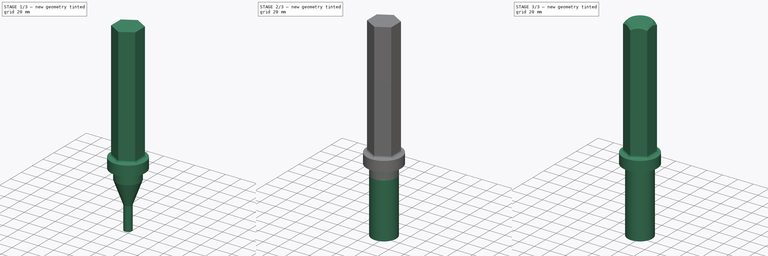
[diagram: build sequence overview — one tinted view per stage of 3, left to right]
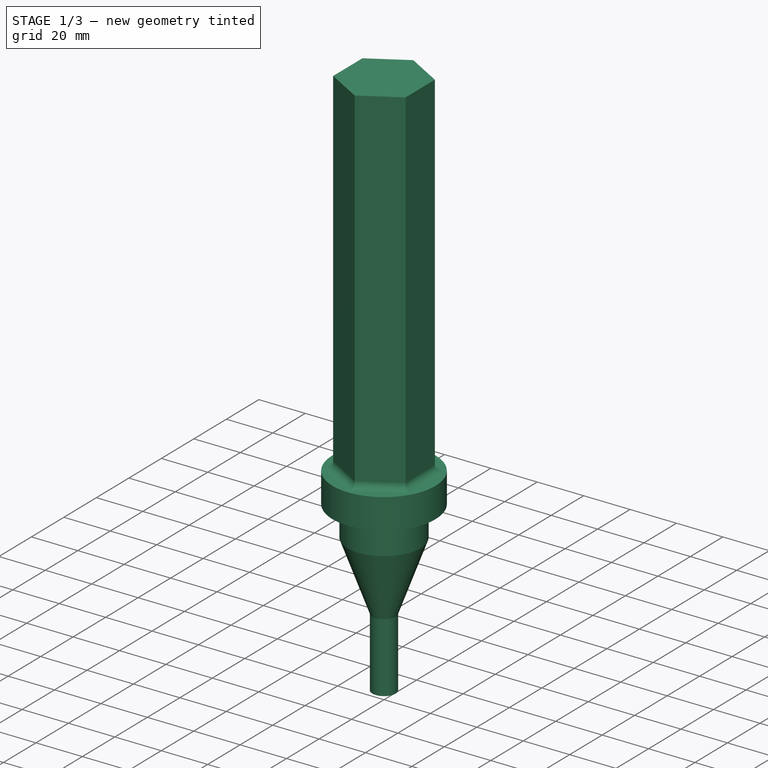
[diagram: stage 1 of 3 — iso view after this stage's code; geometry added in this stage tinted green]
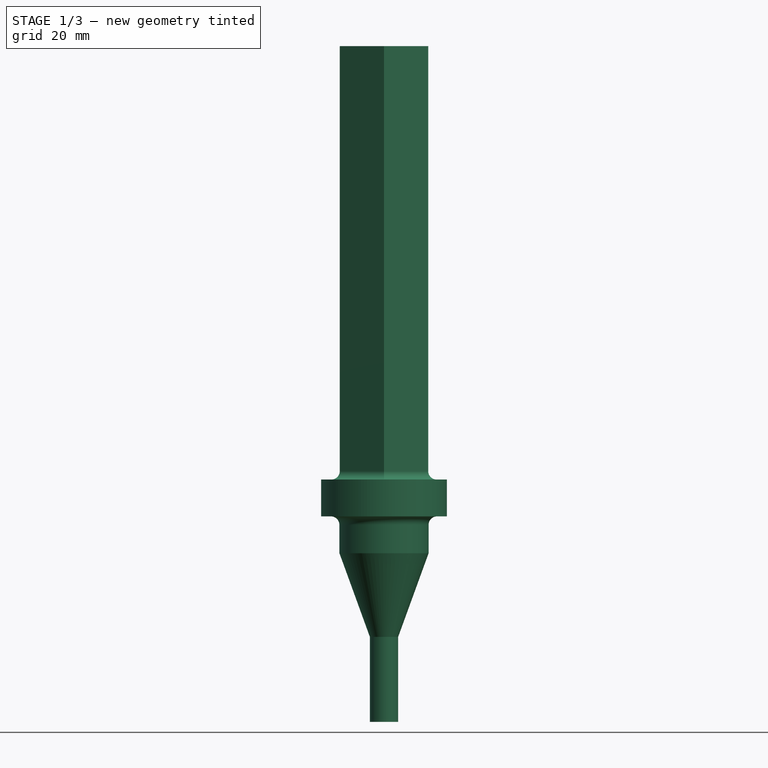
[diagram: stage 1 of 3 — front view after this stage's code; geometry added in this stage tinted green]
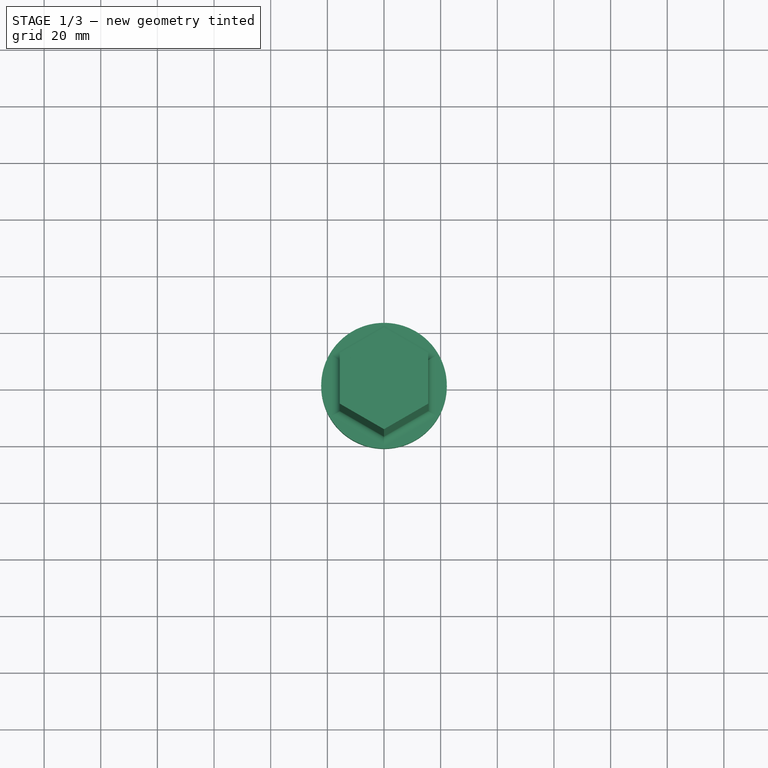
[diagram: stage 1 of 3 — top view after this stage's code; geometry added in this stage tinted green]
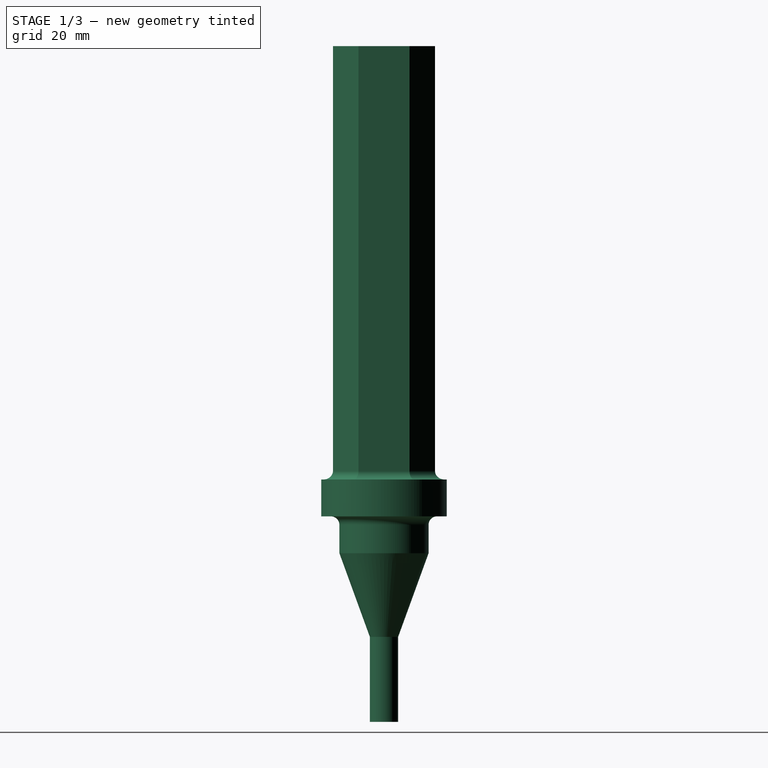
[diagram: stage 1 of 3 — right view after this stage's code; geometry added in this stage tinted green]
FCSTD DOCUMENT  (FreeCAD 0.20R29177 (Git))
Label: recicladora_eje
License: Creative Commons Attribution-ShareAlike
LicenseURL: http://creativecommons.org/licenses/by-sa/4.0/
objects: Sketcher::SketchObject×7, PartDesign::CoordinateSystem×3, PartDesign::Pad×3, PartDesign::Fillet×2, PartDesign::Body×2, Part::Feature×1, PartDesign::FeatureBase×1, PartDesign::Groove×1, PartDesign::Plane×1, PartDesign::SubtractiveLoft×1
note: 29 computed .brp shape members not serialized (recipe doc carries the construction recipe); baked Part::Feature solids carry a one-line shape summary decoded from their .brp

FEATURE [Part::Feature] EjeOriginal001
  shape: bbox 44.36 x 44.36 x 249.7 mm, 20 faces (baked)
FEATURE [PartDesign::FeatureBase] BaseFeature
  BaseFeature = -> EjeOriginal001
FEATURE [PartDesign::CoordinateSystem] LCS_0
  AttacherType = Attacher::AttachEngine3D
  MapMode = 2
  Support = -> [X_Axis002]
FEATURE [Sketcher::SketchObject] Sketch
  ExternalGeometry = -> [BaseFeature]
  FullyConstrained = true
  MapMode = 5
  Placement = pos=(0,0,0) rot=(1,0,0;1.5708rad)
  Support = -> [XZ_Plane]
  expr: Constraints[12] = 10 / 2
  sketch-geometry (7):
    g0: LineSegment StartX=15.75 StartY=-96.74 StartZ=0 EndX=15.75 EndY=-26 EndZ=0
    g1: LineSegment StartX=15.75 StartY=-26 StartZ=0 EndX=5 EndY=-55.5354 EndZ=0
    g2: LineSegment StartX=5 StartY=-55.5354 StartZ=0 EndX=5 EndY=-85.5354 EndZ=0
    g3: LineSegment StartX=5 StartY=-85.5354 StartZ=0 EndX=0 EndY=-85.5354 EndZ=0
    g4: LineSegment StartX=0 StartY=-85.5354 StartZ=0 EndX=0 EndY=-96.74 EndZ=0
    g5: LineSegment StartX=0 StartY=-96.74 StartZ=0 EndX=15.75 EndY=-96.74 EndZ=0
    g6: LineSegment StartX=15.75 StartY=-16 StartZ=0 EndX=15.75 EndY=-26 EndZ=0
  constraints (19):
    c: Vertical(g0)
    c: Coincident(g0,g1)
    c: Coincident(g1,g2)
    c: Coincident(g2,g3)
    c: PointOnObject(g3,g-2)
    c: Horizontal(g3)
    c: Coincident(g3,g4)
    c: PointOnObject(g4,g-7)
    c: Vertical(g4)
    c: Coincident(g4,g5)
    c: Coincident(g5,g-8)
    c: Coincident(g0,g5)
    c: DistanceX(g3,g3) = 5
    c: Vertical(g2)
    c: Coincident(g6,g-8)
    c: Coincident(g6,g0)
    c: Angle(g1,g0) = 0.349066
    c: DistanceY(g2,g2) = 30
    c: DistanceY(g6,g6) = 10
FEATURE [PartDesign::Groove] Groove
  Angle = 360
  Axis = (0,2e-16,1)
  Base = (0,0,0)
  BaseFeature = -> BaseFeature
  Profile = -> Sketch
  ReferenceAxis = -> Sketch [V_Axis]
FEATURE [Sketcher::SketchObject] Sketch005
  FullyConstrained = true
  MapMode = 5
  Support = -> [XY_Plane002]
  expr: Constraints[19] = 31.22
  sketch-geometry (7):
    g0: LineSegment StartX=15.61 StartY=-9.01244 StartZ=0 EndX=15.61 EndY=9.01244 EndZ=0
    g1: LineSegment StartX=15.61 StartY=9.01244 StartZ=0 EndX=-1.8e-15 EndY=18.0249 EndZ=0
    g2: LineSegment StartX=-1.8e-15 StartY=18.0249 StartZ=0 EndX=-15.61 EndY=9.01244 EndZ=0
    g3: LineSegment StartX=-15.61 StartY=9.01244 StartZ=0 EndX=-15.61 EndY=-9.01244 EndZ=0
    g4: LineSegment StartX=-15.61 StartY=-9.01244 StartZ=0 EndX=0 EndY=-18.0249 EndZ=0
    g5: LineSegment StartX=0 StartY=-18.0249 StartZ=0 EndX=15.61 EndY=-9.01244 EndZ=0
    g6: Circle CenterX=0 CenterY=0 CenterZ=0 NormalX=0 NormalY=0 NormalZ=1 AngleXU=0 Radius=18.0249
  constraints (16):
    c: Coincident(g0,g1)
    c: Coincident(g1,g2)
    c: Coincident(g2,g3)
    c: Coincident(g3,g4)
    c: Coincident(g4,g5)
    c: Coincident(g5,g0)
    c: Equal(g0, g1-g5) x5
    c: PointOnObject(g0,g6)
    c: PointOnObject(g1,g6)
    c: PointOnObject(g2,g6)
    c: PointOnObject(g3,g6)
    c: PointOnObject(g4,g6)
    c: PointOnObject(g5,g6)
    c: Coincident(g6,g-1)
    c: Vertical(g0)
    c: DistanceX(g2,g0) = 31.22
FEATURE [PartDesign::Pad] Pad003
  Direction = (0,0,1)
  Length = 153
  Length2 = 10
  Profile = -> Sketch005
  ReferenceAxis = -> Sketch005 [N_Axis]
  Type = 0
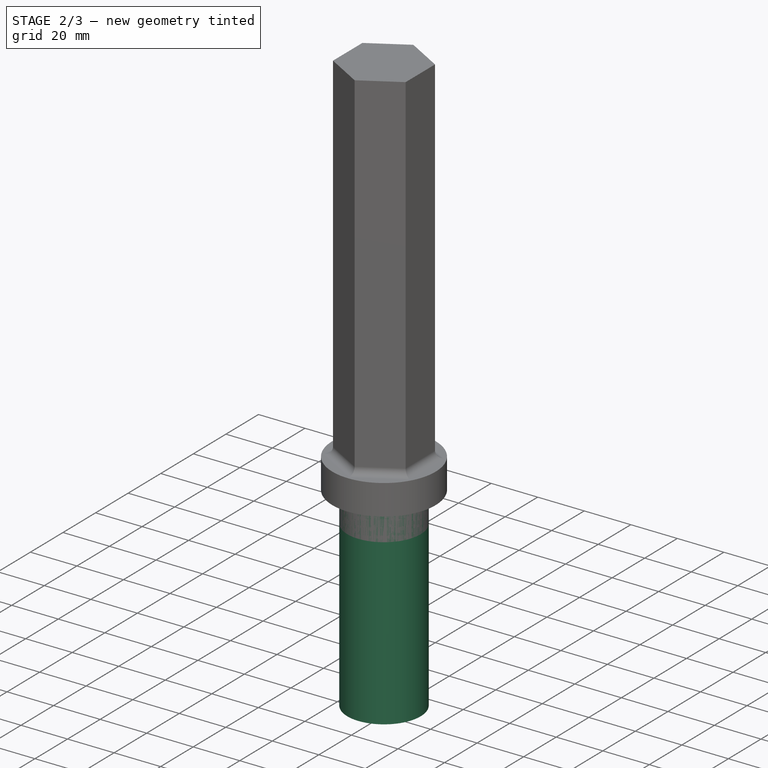
[diagram: stage 2 of 3 — iso view after this stage's code; geometry added in this stage tinted green]
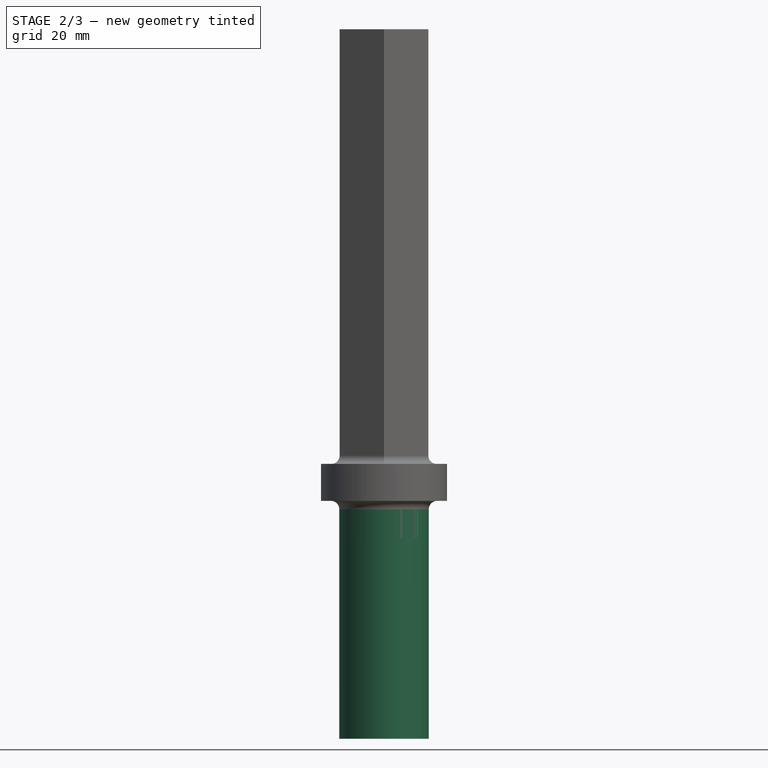
[diagram: stage 2 of 3 — front view after this stage's code; geometry added in this stage tinted green]
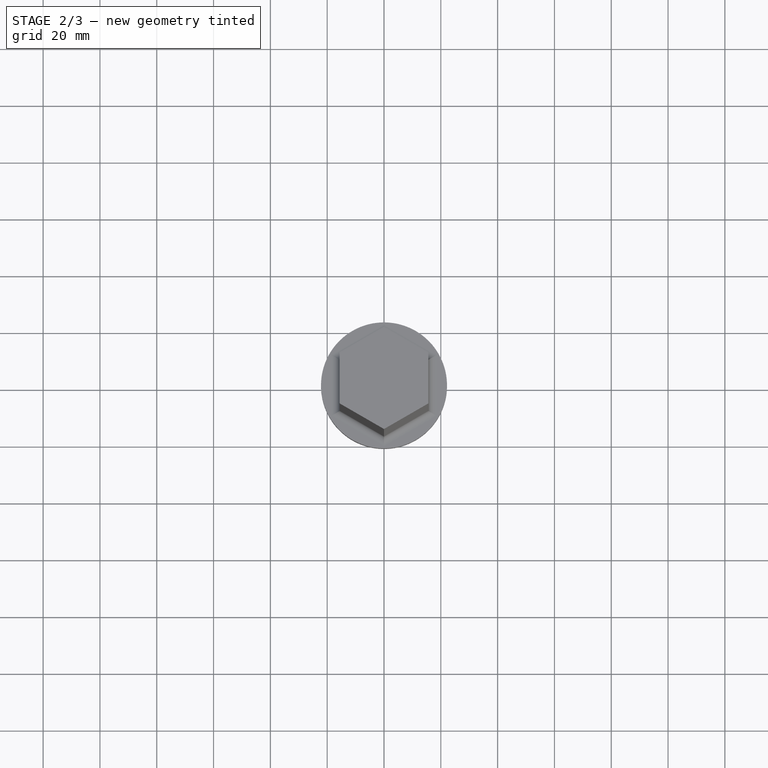
[diagram: stage 2 of 3 — top view after this stage's code; geometry added in this stage tinted green]
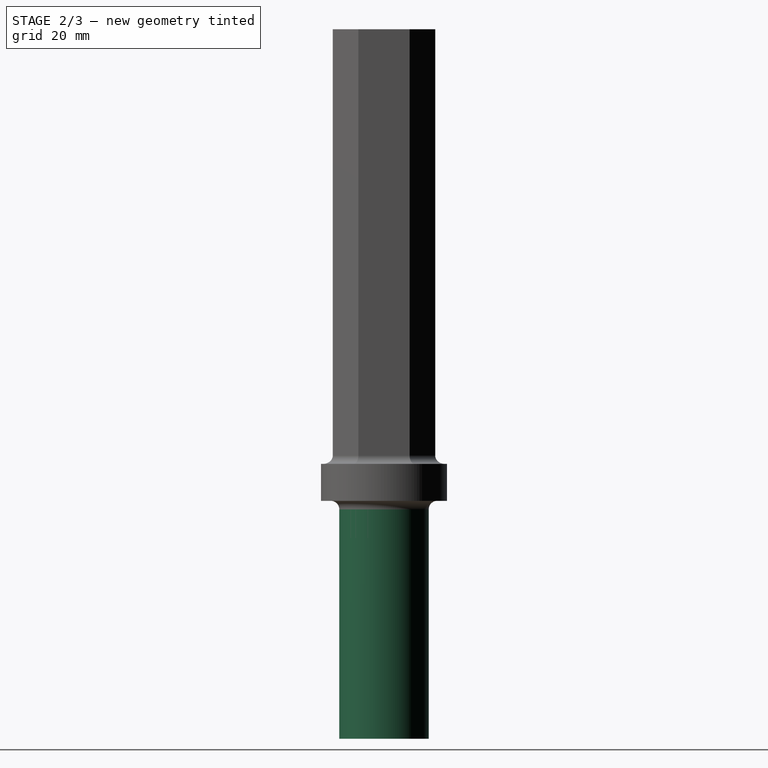
[diagram: stage 2 of 3 — right view after this stage's code; geometry added in this stage tinted green]
FEATURE [Sketcher::SketchObject] Sketch006
  FullyConstrained = true
  MapMode = 5
  Placement = pos=(0,0,0) rot=(1,0,0;3.14159rad)
  Support = -> [Pad003]
  sketch-geometry (1):
    g0: Circle CenterX=0 CenterY=0 CenterZ=0 NormalX=0 NormalY=0 NormalZ=1 AngleXU=0 Radius=22.18
  constraints (2):
    c: Coincident(g0,g-1)
    c: Diameter(g0) = 44.36
FEATURE [PartDesign::Pad] Pad004
  BaseFeature = -> Pad003
  Direction = (0,0,-1)
  Length = 13
  Length2 = 10
  Profile = -> Sketch006
  ReferenceAxis = -> Sketch006 [N_Axis]
  Type = 0
FEATURE [Sketcher::SketchObject] Sketch007
  FullyConstrained = true
  MapMode = 5
  Placement = pos=(0,0,-13) rot=(1,0,0;3.14159rad)
  Support = -> [Pad004]
  expr: Constraints[1] = 31.5
  sketch-geometry (1):
    g0: Circle CenterX=0 CenterY=0 CenterZ=0 NormalX=0 NormalY=0 NormalZ=1 AngleXU=0 Radius=15.75
  constraints (2):
    c: Coincident(g0,g-1)
    c: Diameter(g0) = 31.5
FEATURE [PartDesign::Pad] Pad005
  BaseFeature = -> Pad004
  Direction = (0,0,-1)
  Length = 83.74
  Length2 = 10
  Profile = -> Sketch007
  ReferenceAxis = -> Sketch007 [N_Axis]
  Type = 0
  expr: Length = 83.73999999999999
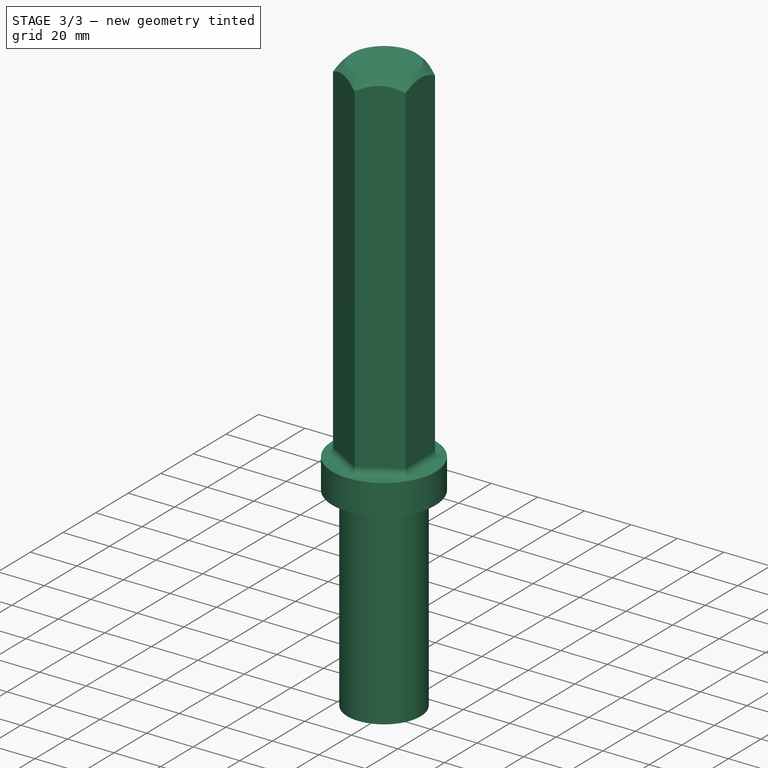
[diagram: stage 3 of 3 — iso view after this stage's code; geometry added in this stage tinted green]
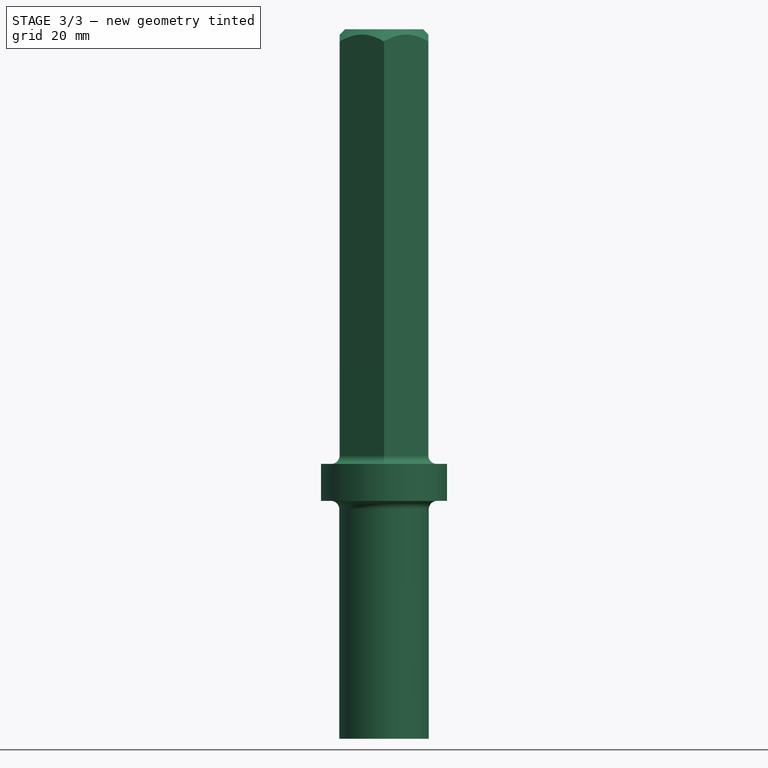
[diagram: stage 3 of 3 — front view after this stage's code; geometry added in this stage tinted green]
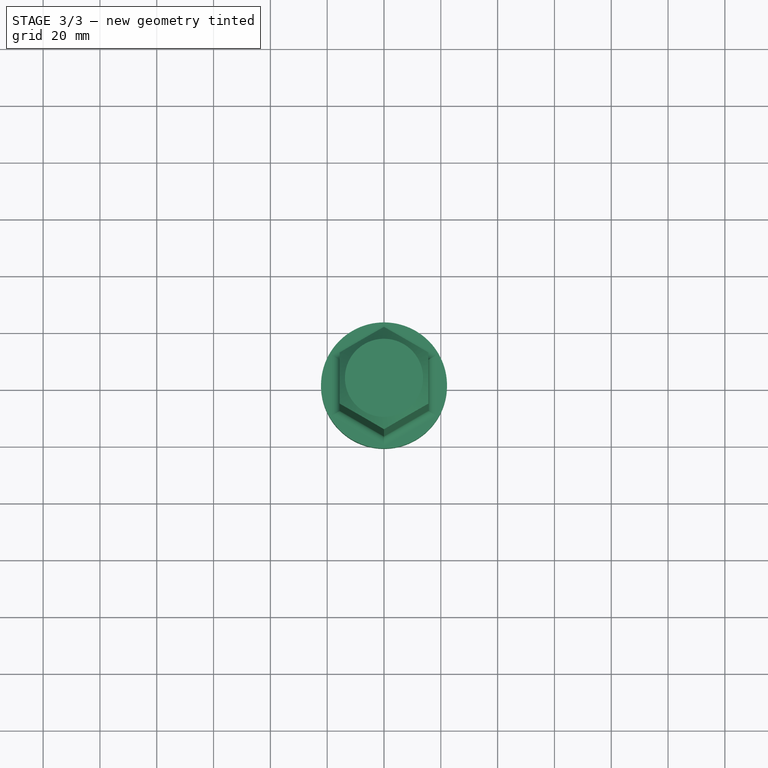
[diagram: stage 3 of 3 — top view after this stage's code; geometry added in this stage tinted green]
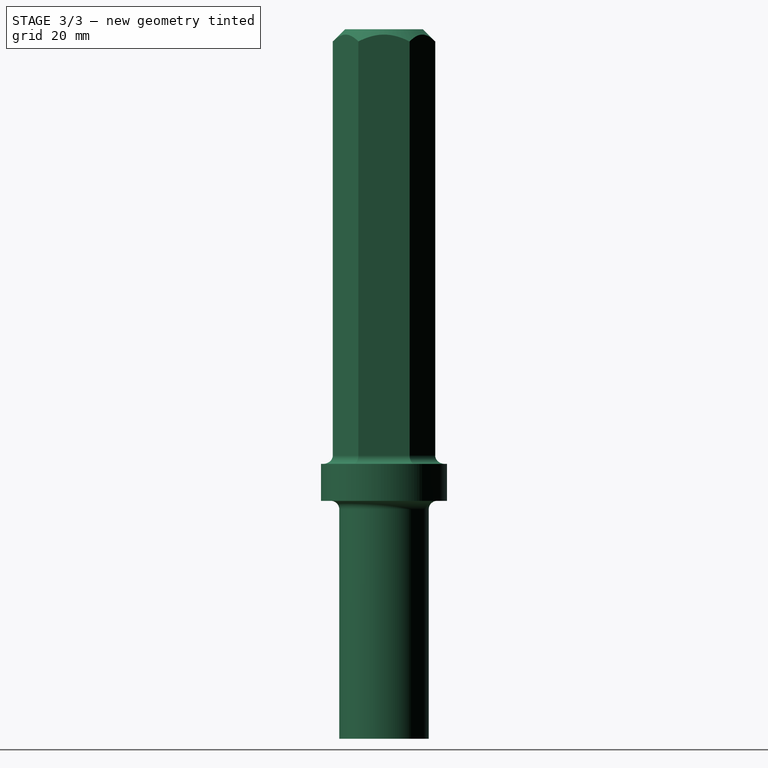
[diagram: stage 3 of 3 — right view after this stage's code; geometry added in this stage tinted green]
FEATURE [PartDesign::Fillet] Fillet
  Base = -> Pad005 [Edge8,Edge9,Edge7,Edge6,Edge4,Edge5]
  BaseFeature = -> Pad005
  Radius = 3
  SupportTransform = false
  UseAllEdges = false
FEATURE [PartDesign::Fillet] Fillet001
  Base = -> Fillet [Edge34]
  BaseFeature = -> Fillet
  Radius = 3
  SupportTransform = false
  UseAllEdges = false
FEATURE [PartDesign::Plane] DatumPlane
  AttachmentOffset = pos=(0,0,-4.275) rot=(0,0,1;0rad)
  Length = 60
  MapMode = 5
  Placement = pos=(0,0,148.725) rot=(0,0,1;0rad)
  ResizeMode = 0
  Support = -> [Fillet001]
  Width = 60
  expr: .AttachmentOffset.Base.z = (27.5 - 36.05) / 2
FEATURE [Sketcher::SketchObject] Sketch008
  FullyConstrained = false
  MapMode = 5
  Placement = pos=(0,0,153) rot=(0,0,1;0rad)
  Support = -> [Fillet001]
  expr: Constraints[1] = 27.5
  sketch-geometry (2):
    g0: Circle CenterX=0 CenterY=0 CenterZ=0 NormalX=0 NormalY=0 NormalZ=1 AngleXU=0 Radius=13.75
    g1: Circle CenterX=0 CenterY=0 CenterZ=0 NormalX=0 NormalY=0 NormalZ=1 AngleXU=0 Radius=33.668
  constraints (3):
    c: Coincident(g0,g-1)
    c: Diameter(g0) = 27.5
    c: Coincident(g1,g0)
FEATURE [Sketcher::SketchObject] Sketch009
  ExternalGeometry = -> [Fillet001]
  FullyConstrained = false
  MapMode = 5
  Placement = pos=(0,0,148.725) rot=(0,0,1;0rad)
  Support = -> [DatumPlane]
  sketch-geometry (2):
    g0: Circle CenterX=0 CenterY=0 CenterZ=0 NormalX=0 NormalY=0 NormalZ=1 AngleXU=0 Radius=18.0249
    g1: Circle CenterX=0 CenterY=0 CenterZ=0 NormalX=0 NormalY=0 NormalZ=1 AngleXU=0 Radius=33.5558
  constraints (3):
    c: Coincident(g0,g-1)
    c: PointOnObject(g-3,g0)
    c: Coincident(g1,g0)
FEATURE [PartDesign::SubtractiveLoft] SubtractiveLoft001
  BaseFeature = -> Fillet001
  Closed = false
  Profile = -> Sketch008
  Ruled = false
  Sections = -> [Sketch009]
FEATURE [PartDesign::Body] EjeOriginal
  Group = -> [LCS_0,Sketch005,Pad003,Sketch006,Pad004,Sketch007,Pad005,Fillet,Fillet001,Sketch008,DatumPlane,Sketch009,SubtractiveLoft001]
  LabelDocUser = recicladora
  LabelPartUser = EjeOriginal
  Origin = -> Origin002
  Tip = -> SubtractiveLoft001
FEATURE [PartDesign::CoordinateSystem] LCS_eje_central_entrada
  AttacherType = Attacher::AttachEngine3D
  MapMode = 11
  Placement = pos=(0,-1.9e-14,-85.5354) rot=(0,0,1;1.5708rad)
  Support = -> [Groove]
FEATURE [Sketcher::SketchObject] Sketch010
  ExternalGeometry = -> [Groove]
  FullyConstrained = true
  MapMode = 5
  Support = -> [Groove]
  sketch-geometry (7):
    g0: Circle CenterX=0 CenterY=0 CenterZ=0 NormalX=0 NormalY=0 NormalZ=1 AngleXU=0 Radius=22.18
    g1: LineSegment StartX=-18.61 StartY=10.7445 StartZ=0 EndX=0 EndY=21.489 EndZ=0
    g2: LineSegment StartX=0 StartY=21.489 StartZ=0 EndX=18.61 EndY=10.7445 EndZ=0
    g3: LineSegment StartX=-18.61 StartY=10.7445 StartZ=0 EndX=-18.61 EndY=-10.7445 EndZ=0
    g4: LineSegment StartX=18.61 StartY=10.7445 StartZ=0 EndX=18.61 EndY=-10.7445 EndZ=0
    g5: LineSegment StartX=18.61 StartY=-10.7445 StartZ=0 EndX=3.6e-15 EndY=-21.489 EndZ=0
    g6: LineSegment StartX=3.6e-15 StartY=-21.489 StartZ=0 EndX=-18.61 EndY=-10.7445 EndZ=0
  constraints (14):
    c: Coincident(g0,g-3)
    c: Equal(g0,g-3)
    c: Coincident(g1,g-4)
    c: Coincident(g1,g-5)
    c: Coincident(g2,g1)
    c: Coincident(g2,g-5)
    c: Coincident(g3,g1)
    c: Coincident(g3,g-6)
    c: Coincident(g2,g4)
    c: Coincident(g4,g-8)
    c: Coincident(g4,g5)
    c: Coincident(g5,g-9)
    c: Coincident(g5,g6)
    c: Coincident(g6,g3)
FEATURE [PartDesign::CoordinateSystem] LCS_eje_central_salida
  AttacherType = Attacher::AttachEngine3D
  MapMode = 11
  Support = -> [Sketch010]
FEATURE [PartDesign::Body] EjeCentral
  BaseFeature = -> EjeOriginal001
  Group = -> [BaseFeature,Sketch,Groove,LCS_eje_central_salida,LCS_eje_central_entrada,Sketch010]
  Origin = -> Origin
  Tip = -> Groove
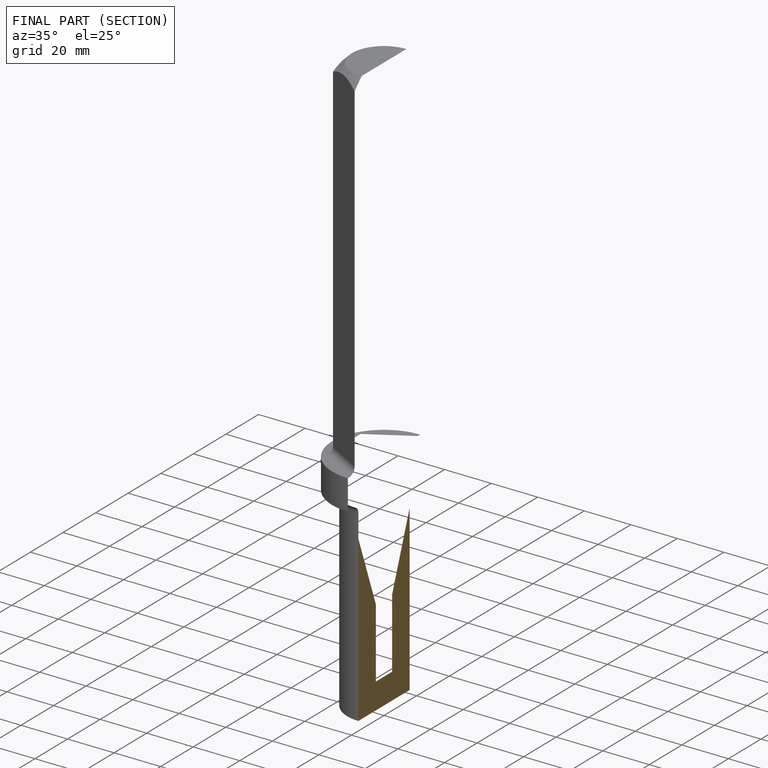
[diagram: finished part — half-section view (interior)]
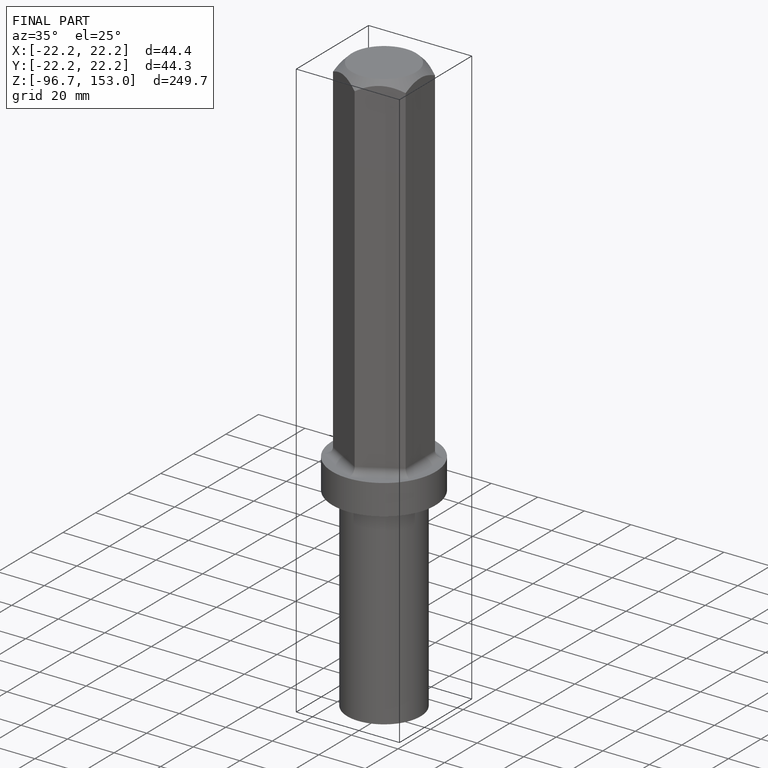
[diagram: finished part — iso view with bounding-box wireframe]
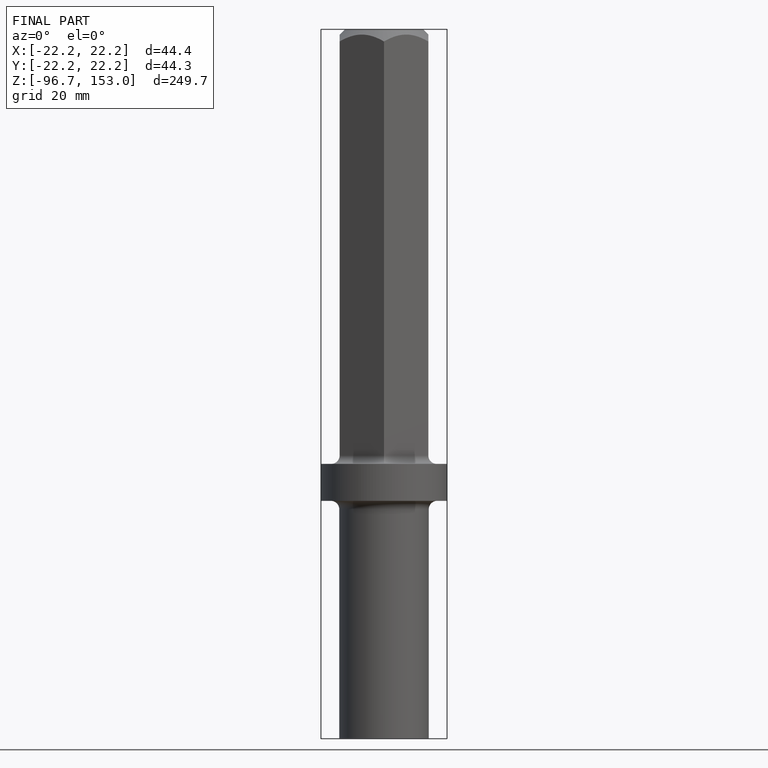
[diagram: finished part — front view with bounding-box wireframe]
